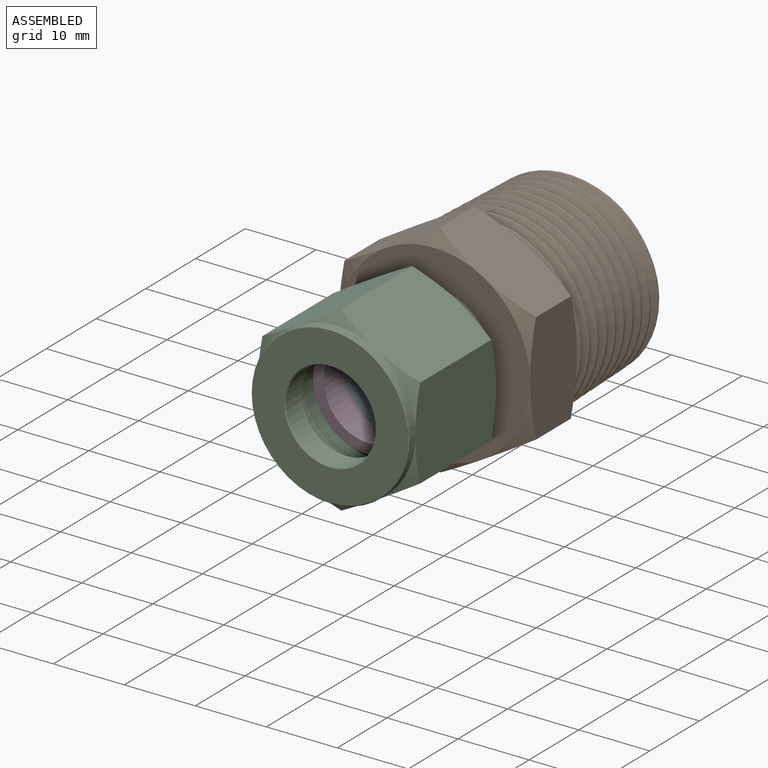
[diagram: assembled view]
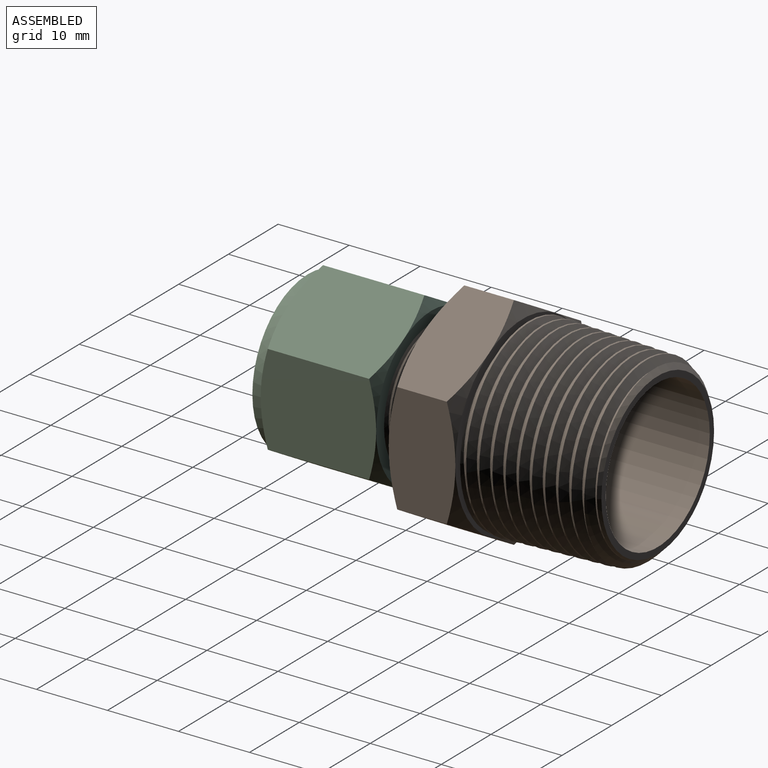
[diagram: assembled view, second angle]
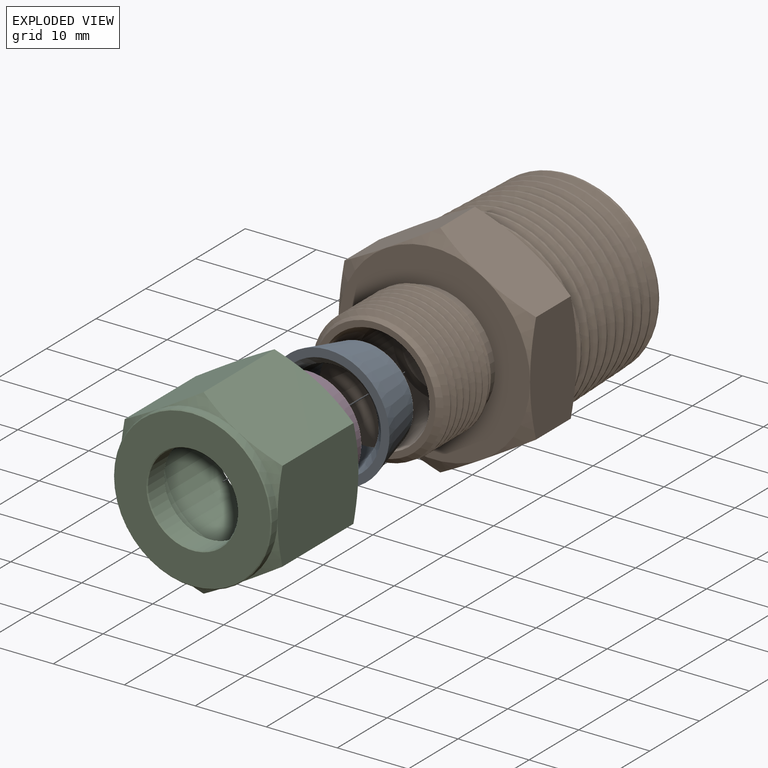
[diagram: exploded view]
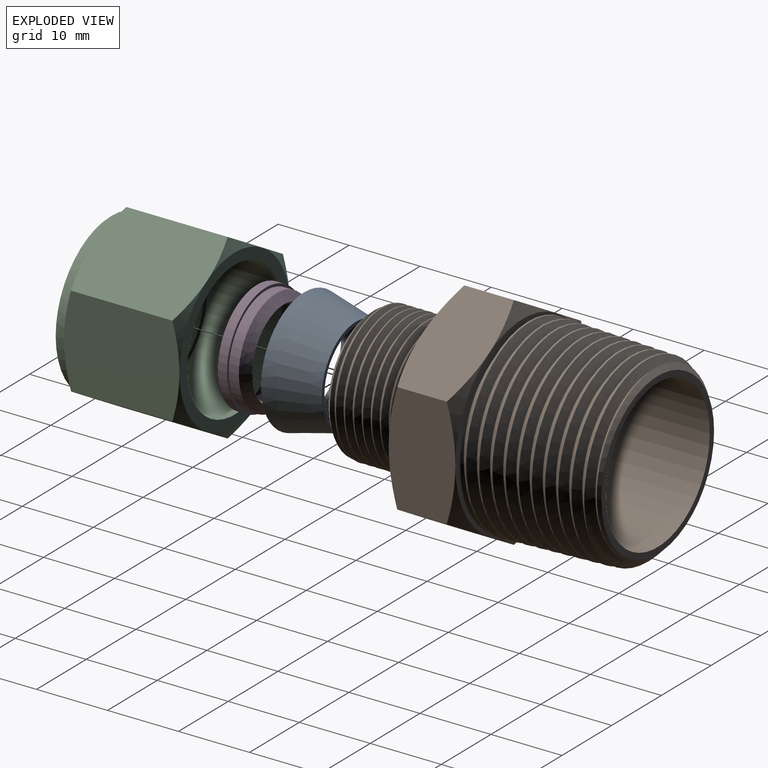
[diagram: exploded view, second angle]
ASSEMBLY  parts=4 mates=3
PART A: 5 faces, bbox 17.3x7.3x17.3 mm
  f0: cone r=6.88mm half-angle=13.7deg, axis (0,-1,0), area 367.6mm2, adj f1,f4
  f1: plane 17.32x17.32mm, normal (0,-1,0), area 60.5mm2, adj f0,f2
  f2: cone r=7.47mm half-angle=45deg, axis (0,-1,0), area 68.6mm2, adj f1,f3
  f3: cylinder r=6.35mm len=12.7mm, axis (0,-1,0), area 247.3mm2, adj f2,f4
  f4: plane 13.77x13.77mm, normal (0,1,0), area 22.2mm2, adj f0,f3
PART B: 41 faces, bbox 32.4x42.8x32.4 mm
  f0: cylinder r=5.16mm len=10.31mm, axis (0,-1,0), area 140.6mm2, adj f34,f40
  f1: plane 22.67x22.67mm, normal (0,1,0), area 59.4mm2, adj f37,f39
  f2: cone r=12.71mm half-angle=1.8deg, axis (0,-1,0), area 218.9mm2, adj f4,f5,f7,f37,f38
  f3: bspline ~24.42x24.38mm, area 175.2mm2, adj f4,f5,f7,f37
  f4: bspline ~26.94x26.89mm, area 1023.8mm2, adj f2,f3,f7,f37
  f5: bspline ~27x26.97mm, area 1068.3mm2, adj f2,f3,f7,f37,f38
  f6: plane 17.13x17.13mm, normal (0,-1,0), area 44.2mm2, adj f11,f36
  f7: plane 27.69x27.69mm, normal (0,1,0), area 62.2mm2, adj f2,f3,f4,f5,f28,f29,f30,f31
  f8: plane 26.99x26.99mm, normal (0,-1,0), area 341.7mm2, adj f10,f16,f17,f18,f19,f20,f21
  f9: cone r=9.66mm half-angle=45deg, axis (0,-1,0), area 43.5mm2, adj f10,f12,f13,f14,f15
  f10: cylinder r=8.56mm len=17.13mm, axis (0,-1,0), area 59.2mm2, adj f8,f9
  f11: cone r=8.56mm half-angle=45deg, axis (0,1,0), area 43.6mm2, adj f6,f12,f13,f14,f15
  f12: bspline ~19.19x19.19mm, area 418.2mm2, adj f9,f11,f13,f15
  f13: cylinder r=8.7mm len=17.4mm, axis (0,1,0), area 72.3mm2, adj f9,f11,f12,f14
  f14: bspline ~19.19x19.19mm, area 418mm2, adj f9,f11,f13,f15
  f15: cylinder r=9.53mm len=19.05mm, axis (0,1,0), area 66.9mm2, adj f9,f11,f12,f14
  f16: cone r=13.49mm half-angle=60deg, axis (0,1,0), area 17.9mm2, adj f8,f25,f26
  f17: cone r=13.49mm half-angle=60deg, axis (0,1,0), area 17.9mm2, adj f8,f24,f25
  f18: cone r=13.49mm half-angle=60deg, axis (0,1,0), area 17.9mm2, adj f8,f23,f24
  f19: cone r=13.49mm half-angle=60deg, axis (0,1,0), area 17.9mm2, adj f8,f22,f23
  f20: cone r=13.49mm half-angle=60deg, axis (0,1,0), area 17.9mm2, adj f8,f22,f27
  f21: cone r=13.49mm half-angle=60deg, axis (0,1,0), area 17.9mm2, adj f8,f26,f27
  f22: plane 14.77x10.68mm, normal (0.5,0,0.87), area 133.5mm2, adj f19,f20,f23,f27,f31,f32
  f23: plane 16.88x10.69mm, normal (1,0,0), area 133.5mm2, adj f18,f19,f22,f24,f30,f31
  f24: plane 14.77x10.68mm, normal (0.5,0,-0.87), area 133.5mm2, adj f17,f18,f23,f25,f29,f30
  f25: plane 14.77x10.68mm, normal (-0.5,0,-0.87), area 133.5mm2, adj f16,f17,f24,f26,f28,f29
  f26: plane 16.88x10.69mm, normal (-1,0,0), area 133.6mm2, adj f16,f21,f25,f27,f28,f33
  f27: plane 14.77x10.68mm, normal (-0.5,0,0.87), area 133.5mm2, adj f20,f21,f22,f26,f32,f33
  f28: cone r=15.58mm half-angle=60deg, axis (0,-1,0), area 17.9mm2, adj f7,f25,f26
  f29: cone r=15.58mm half-angle=60deg, axis (0,-1,0), area 17.9mm2, adj f7,f24,f25
  f30: cone r=15.58mm half-angle=60deg, axis (0,-1,0), area 17.9mm2, adj f7,f23,f24
  f31: cone r=15.58mm half-angle=60deg, axis (0,-1,0), area 17.9mm2, adj f7,f22,f23
  f32: cone r=15.58mm half-angle=60deg, axis (0,-1,0), area 17.9mm2, adj f7,f22,f27
  f33: cone r=15.58mm half-angle=60deg, axis (0,-1,0), area 17.9mm2, adj f7,f26,f27
  f34: plane 12.7x12.7mm, normal (0,-1,0), area 43.2mm2, adj f0,f35
  f35: cylinder r=6.35mm len=12.7mm, axis (0,-1,0), area 285.4mm2, adj f34,f36
  f36: cone r=6.35mm half-angle=13.7deg, axis (0,-1,0), area 252mm2, adj f6,f35
  f37: cone r=12.9mm half-angle=45deg, axis (0,-1,0), area 87.5mm2, adj f1,f2,f3,f4,f5,f38
  f38: cone r=12.9mm half-angle=45deg, axis (0,-1,0), area 0.2mm2, adj f2,f5,f37
  f39: cylinder r=10.46mm len=20.93mm, axis (0,-1,0), area 1325.2mm2, adj f1,f40
  f40: cone r=10.46mm half-angle=59deg, axis (0,1,0), area 303.9mm2, adj f0,f39
PART C: 29 faces, bbox 25.7x17.5x25.7 mm
  f0: plane 22.23x22.23mm, normal (0,1,0), area 102.9mm2, adj f2,f3,f4,f5,f6,f7,f22
  f1: plane 21.97x21.97mm, normal (0,-1,0), area 247.3mm2, adj f27,f28
  f2: cone r=12.83mm half-angle=60deg, axis (0,-1,0), area 7.7mm2, adj f0,f9,f10
  f3: cone r=12.83mm half-angle=60deg, axis (0,-1,0), area 7.7mm2, adj f0,f10,f11
  f4: cone r=12.83mm half-angle=60deg, axis (0,-1,0), area 7.7mm2, adj f0,f11,f12
  f5: cone r=12.83mm half-angle=60deg, axis (0,-1,0), area 7.7mm2, adj f0,f12,f13
  f6: cone r=12.83mm half-angle=60deg, axis (0,-1,0), area 7.7mm2, adj f0,f8,f13
  f7: cone r=12.83mm half-angle=60deg, axis (0,-1,0), area 7.7mm2, adj f0,f8,f9
  f8: plane 16.26x11.11mm, normal (0.5,0,0.87), area 199.9mm2, adj f6,f7,f9,f13,f15,f20
  f9: plane 16.26x12.84mm, normal (1,0,0), area 199.9mm2, adj f2,f7,f8,f10,f19,f20
  f10: plane 16.26x11.11mm, normal (0.5,0,-0.87), area 199.9mm2, adj f2,f3,f9,f11,f18,f19
  f11: plane 16.26x11.11mm, normal (-0.5,0,-0.87), area 199.9mm2, adj f3,f4,f10,f12,f17,f18
  f12: plane 16.26x12.84mm, normal (-1,0,0), area 199.9mm2, adj f4,f5,f11,f13,f16,f17
  f13: plane 16.26x11.11mm, normal (-0.5,0,0.87), area 199.9mm2, adj f5,f6,f8,f12,f15,f16
  f14: cylinder r=11.11mm len=22.23mm, axis (0,-1,0), area 79.8mm2, adj f15,f16,f17,f18,f19,f20,f28
  f15: cone r=11.11mm half-angle=60deg, axis (0,1,0), area 7.7mm2, adj f8,f13,f14
  f16: cone r=11.11mm half-angle=60deg, axis (0,1,0), area 7.7mm2, adj f12,f13,f14
  f17: cone r=11.11mm half-angle=60deg, axis (0,1,0), area 7.7mm2, adj f11,f12,f14
  f18: cone r=11.11mm half-angle=60deg, axis (0,1,0), area 7.7mm2, adj f10,f11,f14
  f19: cone r=11.11mm half-angle=60deg, axis (0,1,0), area 7.7mm2, adj f9,f10,f14
  f20: cone r=11.11mm half-angle=60deg, axis (0,1,0), area 7.7mm2, adj f8,f9,f14
  f21: cylinder r=6.35mm len=12.7mm, axis (0,-1,0), area 129.7mm2, adj f26,f27
  f22: cylinder r=9.53mm len=19.05mm, axis (0,-1,0), area 629.3mm2, adj f0,f23
  f23: plane 19.05x19.05mm, normal (0,1,0), area 36.7mm2, adj f22,f24
  f24: cylinder r=8.89mm len=17.78mm, axis (0,-1,0), area 195.8mm2, adj f23,f25
  f25: plane 17.78x17.78mm, normal (0,1,0), area 116.5mm2, adj f24,f26
  f26: cone r=6.48mm half-angle=45deg, axis (0,1,0), area 7.2mm2, adj f21,f25
  f27: cone r=6.35mm half-angle=45deg, axis (0,-1,0), area 7.2mm2, adj f1,f21
  f28: cone r=10.99mm half-angle=45deg, axis (0,1,0), area 12.5mm2, adj f1,f14
PART D: 6 faces, bbox 15.7x3.8x15.7 mm
  f0: plane 15.67x15.67mm, normal (0,-1,0), area 66.2mm2, adj f1,f5
  f1: cylinder r=7.84mm len=15.67mm, axis (0,-1,0), area 62.5mm2, adj f0,f2
  f2: plane 15.67x15.67mm, normal (0,1,0), area 17.7mm2, adj f1,f3
  f3: cylinder r=7.47mm len=14.94mm, axis (0,-1,0), area 66.7mm2, adj f2,f4
  f4: cone r=6.35mm half-angle=45deg, axis (0,-1,0), area 68.6mm2, adj f3,f5
  f5: cylinder r=6.35mm len=12.7mm, axis (0,-1,0), area 152mm2, adj f0,f4
PLACE A t=(7.8,0.13,22.45)mm
PLACE B t=(7.8,-6.6,22.45)mm
PLACE C t=(7.8,-5.46,22.45)mm
PLACE D t=(7.8,-1.22,22.45)mm
MATE fastened D.f1 <-> B.f0  axis (0,1,0) through (7.8,3.56,22.45)mm
MATE fastened C.f2 <-> D.f1  axis (0,-1,0) through (7.8,-5.33,22.45)mm
MATE fastened A.f0 <-> B.f0  axis (0,-1,0) through (7.8,6.33,22.45)mm
